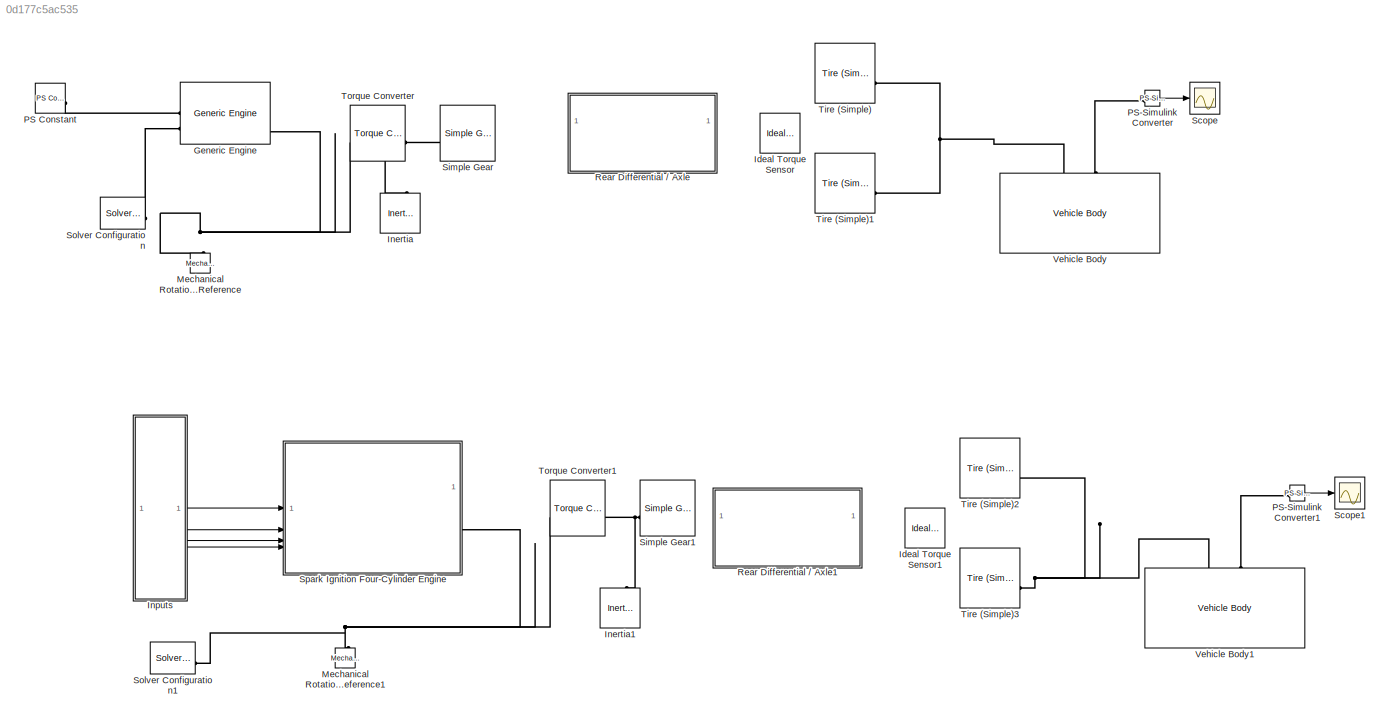
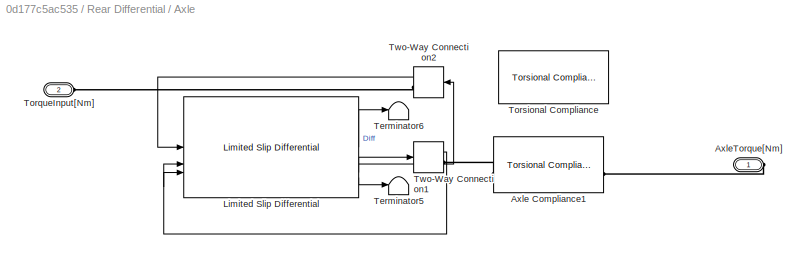
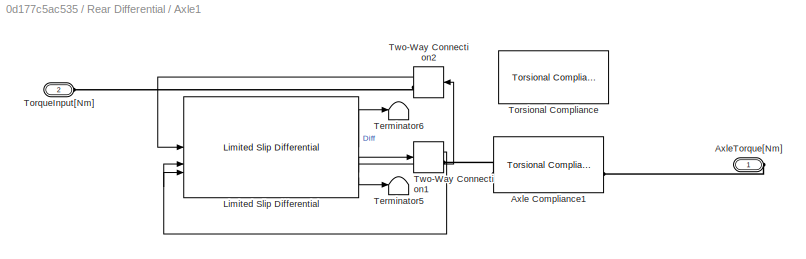
MODEL slx_0d177c5ac535
KIND model
CONFIG AbsTol = auto
CONFIG EnableMultiTasking = off
CONFIG FixedStep = auto
CONFIG MaxStep = auto
CONFIG MinStep = auto
CONFIG RelTol = 1e-3
CONFIG SampleTimeConstraint = Unconstrained
CONFIG SolverName = VariableStepAuto
CONFIG StartTime = 0.0
CONFIG StopTime = 10.0
BLOCK [Reference] Generic Engine  REF=sdl_lib/Engines & Motors/Generic Engine
  SourceBlock = sdl_lib/Engines & Motors/Generic Engine
  SourceType = Generic Engine
BLOCK [Reference] Ideal Torque Sensor  REF=fl_lib/Mechanical/Mechanical Sensors/Ideal Torque Sensor
  SourceBlock = fl_lib/Mechanical/Mechanical Sensors/Ideal Torque Sensor
  SourceType = Ideal Torque Sensor
BLOCK [Reference] Ideal Torque Sensor1  REF=fl_lib/Mechanical/Mechanical Sensors/Ideal Torque Sensor
  SourceBlock = fl_lib/Mechanical/Mechanical Sensors/Ideal Torque Sensor
  SourceType = Ideal Torque Sensor
BLOCK [Reference] Inertia  REF=fl_lib/Mechanical/Rotational Elements/Inertia
  NameLocation = right
  SourceBlock = fl_lib/Mechanical/Rotational Elements/Inertia
  SourceType = Inertia
BLOCK [Reference] Inertia1  REF=fl_lib/Mechanical/Rotational Elements/Inertia
  NameLocation = right
  SourceBlock = fl_lib/Mechanical/Rotational Elements/Inertia
  SourceType = Inertia
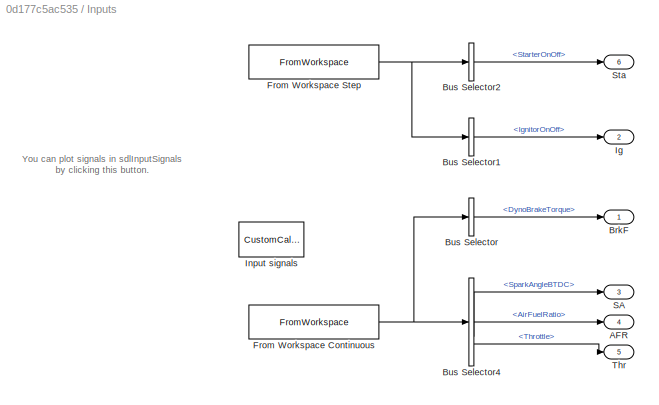
BLOCK [SubSystem] Inputs
BLOCK [Outport] Inputs/AFR
  NameLocation = right
  Port = 4
BLOCK [Outport] Inputs/BrkF
  NameLocation = right
BLOCK [BusSelector] Inputs/Bus Selector
  OutputSignals = DynoBrakeTorque
BLOCK [BusSelector] Inputs/Bus Selector1
  OutputSignals = IgnitorOnOff
BLOCK [BusSelector] Inputs/Bus Selector2
  OutputSignals = StarterOnOff
BLOCK [BusSelector] Inputs/Bus Selector4
  OutputSignals = SparkAngleBTDC,AirFuelRatio,Throttle
BLOCK [FromWorkspace] Inputs/From Workspace Continuous
  AttributesFormatString = Interpolate: %<Interpolate>\n%<OutDataTypeStr>
  OutDataTypeStr = Bus: sdlInputBus
  OutputAfterFinalValue = Holding final value
  VariableName = sdlInputSignals
BLOCK [FromWorkspace] Inputs/From Workspace Step
  AttributesFormatString = Interpolate: %<Interpolate>\n%<OutDataTypeStr>
  Interpolate = off
  OutDataTypeStr = Bus: sdlInputBus
  OutputAfterFinalValue = Holding final value
  VariableName = sdlInputSignals
BLOCK [Outport] Inputs/Ig
  NameLocation = right
  Port = 2
BLOCK [CustomCallbackButton] Inputs/Input signals
  Configuration = {"components":[{"name":"BackgroundImageComponent","settings":{"image":{"size":[0,0],"src":"default","srcOrientation":"Right"},"position":[0,0,1,1]}},{"name":"ButtonStateComponent","settings":{"buttonType":"momentary","clickFcn":"if not(evalin(\"base\", \"exist('sdlInputSignals','var') == 1\"))\n  sdlTmpData = CrankAngleResolvedEngineInput().EngineStartStopStart;\n  sdlInputSignals = sdlTmpData.Sig...<+2224ch>
  CustomBackgroundColor = {"color":[0.9568627451,0.9568627451,0.9568627451],"show":true}
  NameLocation = right
BLOCK [Outport] Inputs/SA
  NameLocation = right
  Port = 3
BLOCK [Outport] Inputs/Sta
  NameLocation = right
  Port = 6
BLOCK [Outport] Inputs/Thr
  NameLocation = right
  Port = 5
BLOCK [Reference] Mechanical Rotational Reference  REF=fl_lib/Mechanical/Rotational Elements/Mechanical
Rotational Reference
  NameLocation = right
  SourceBlock = fl_lib/Mechanical/Rotational Elements/Mechanical\nRotational Reference
  SourceType = Mechanical\nRotational Reference
BLOCK [Reference] Mechanical Rotational Reference1  REF=fl_lib/Mechanical/Rotational Elements/Mechanical
Rotational Reference
  NameLocation = right
  SourceBlock = fl_lib/Mechanical/Rotational Elements/Mechanical\nRotational Reference
  SourceType = Mechanical\nRotational Reference
BLOCK [Reference] PS Constant  REF=fl_lib/Physical Signals/Sources/PS Constant
  SourceBlock = fl_lib/Physical Signals/Sources/PS Constant
  SourceType = PS Constant
BLOCK [Reference] PS-Simulink Converter  REF=nesl_utility/PS-Simulink
Converter
  SourceBlock = nesl_utility/PS-Simulink\nConverter
  SourceType = PS-Simulink\nConverter
BLOCK [Reference] PS-Simulink Converter1  REF=nesl_utility/PS-Simulink
Converter
  SourceBlock = nesl_utility/PS-Simulink\nConverter
  SourceType = PS-Simulink\nConverter
BLOCK [SubSystem] Rear Differential // Axle
BLOCK [Reference] Rear Differential // Axle/Axle Compliance1  REF=autolibsharedcoupling/Torsional Compliance
  LibrarySourceBlock = autolibcoupling/Torsional Compliance
  SourceBlock = autolibsharedcoupling/Torsional Compliance
  SourceType = Torsional Compliance
BLOCK [PMIOPort] Rear Differential // Axle/AxleTorque[Nm]
  Side = Right
BLOCK [Reference] Rear Differential // Axle/Limited Slip Differential  REF=autolibshareddiff/Limited Slip Differential
  LibrarySourceBlock = autolibdiff/Limited Slip Differential
  SourceBlock = autolibshareddiff/Limited Slip Differential
  SourceType = Limited Slip Differential
BLOCK [Terminator] Rear Differential // Axle/Terminator5
BLOCK [Terminator] Rear Differential // Axle/Terminator6
BLOCK [PMIOPort] Rear Differential // Axle/TorqueInput[Nm]
  Port = 2
  Side = Left
BLOCK [Reference] Rear Differential // Axle/Torsional Compliance  REF=autolibsharedcoupling/Torsional Compliance
  LibrarySourceBlock = autolibcoupling/Torsional Compliance
  SourceBlock = autolibsharedcoupling/Torsional Compliance
  SourceType = Torsional Compliance
BLOCK [TwoWayConnection] Rear Differential // Axle/Two-Way Connection1
BLOCK [TwoWayConnection] Rear Differential // Axle/Two-Way Connection2
BLOCK [SubSystem] Rear Differential // Axle1
BLOCK [Reference] Rear Differential // Axle1/Axle Compliance1  REF=autolibsharedcoupling/Torsional Compliance
  LibrarySourceBlock = autolibcoupling/Torsional Compliance
  SourceBlock = autolibsharedcoupling/Torsional Compliance
  SourceType = Torsional Compliance
BLOCK [PMIOPort] Rear Differential // Axle1/AxleTorque[Nm]
  Side = Right
BLOCK [Reference] Rear Differential // Axle1/Limited Slip Differential  REF=autolibshareddiff/Limited Slip Differential
  LibrarySourceBlock = autolibdiff/Limited Slip Differential
  SourceBlock = autolibshareddiff/Limited Slip Differential
  SourceType = Limited Slip Differential
BLOCK [Terminator] Rear Differential // Axle1/Terminator5
BLOCK [Terminator] Rear Differential // Axle1/Terminator6
BLOCK [PMIOPort] Rear Differential // Axle1/TorqueInput[Nm]
  Port = 2
  Side = Left
BLOCK [Reference] Rear Differential // Axle1/Torsional Compliance  REF=autolibsharedcoupling/Torsional Compliance
  LibrarySourceBlock = autolibcoupling/Torsional Compliance
  SourceBlock = autolibsharedcoupling/Torsional Compliance
  SourceType = Torsional Compliance
BLOCK [TwoWayConnection] Rear Differential // Axle1/Two-Way Connection1
BLOCK [TwoWayConnection] Rear Differential // Axle1/Two-Way Connection2
BLOCK [Scope] Scope
  Floating = off
  NumInputPorts = 1
  ScopeSpecificationString = Simulink.scopes.TimeScopeBlockCfg('CurrentConfiguration', extmgr.ConfigurationSet(extmgr.Configuration('Core','General UI',true),extmgr.Configuration('Core','Source UI',true),extmgr.Configuration('Sources','WiredSimulink',true),extmgr.Configuration('Visuals','Time Domain',true,'SerializedDisplays',{struct('MinYLimReal','-11.73994','MaxYLimReal','105.65944','YLabelReal','','MinYLimMag','0.00000','M...<+1376ch>
BLOCK [Scope] Scope1
  Floating = off
  NumInputPorts = 1
  ScopeSpecificationString = Simulink.scopes.TimeScopeBlockCfg('CurrentConfiguration', extmgr.ConfigurationSet(extmgr.Configuration('Core','General UI',true),extmgr.Configuration('Core','Source UI',true),extmgr.Configuration('Sources','WiredSimulink',true,'DataLoggingVariableName','ScopeData1'),extmgr.Configuration('Visuals','Time Domain',true,'SerializedDisplays',{struct('MinYLimReal','-11.73994','MaxYLimReal','105.65944','Y...<+1415ch>
BLOCK [Reference] Simple Gear  REF=sdl_lib/Gears/Simple Gear
  SourceBlock = sdl_lib/Gears/Simple Gear
  SourceType = Simple Gear
BLOCK [Reference] Simple Gear1  REF=sdl_lib/Gears/Simple Gear
  SourceBlock = sdl_lib/Gears/Simple Gear
  SourceType = Simple Gear
BLOCK [Reference] Solver Configuration  REF=nesl_utility/Solver
Configuration
  SourceBlock = nesl_utility/Solver\nConfiguration
  SourceType = Solver\nConfiguration
BLOCK [Reference] Solver Configuration1  REF=nesl_utility/Solver
Configuration
  SourceBlock = nesl_utility/Solver\nConfiguration
  SourceType = Solver\nConfiguration
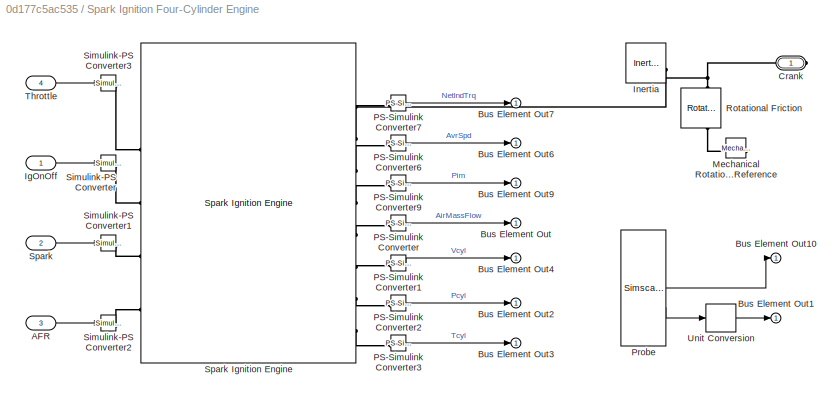
BLOCK [SubSystem] Spark Ignition Four-Cylinder Engine
BLOCK [Inport] Spark Ignition Four-Cylinder Engine/AFR
  Port = 3
BLOCK [Outport] Spark Ignition Four-Cylinder Engine/Bus Element Out
  AttributesFormatString = %<Unit>
BLOCK [Outport] Spark Ignition Four-Cylinder Engine/Bus Element Out1
  AttributesFormatString = %<Unit>
BLOCK [Outport] Spark Ignition Four-Cylinder Engine/Bus Element Out10
  AttributesFormatString = %<Unit>
BLOCK [Outport] Spark Ignition Four-Cylinder Engine/Bus Element Out2
  AttributesFormatString = %<Unit>
BLOCK [Outport] Spark Ignition Four-Cylinder Engine/Bus Element Out3
  AttributesFormatString = %<Unit>
BLOCK [Outport] Spark Ignition Four-Cylinder Engine/Bus Element Out4
  AttributesFormatString = %<Unit>
BLOCK [Outport] Spark Ignition Four-Cylinder Engine/Bus Element Out6
  AttributesFormatString = %<Unit>
BLOCK [Outport] Spark Ignition Four-Cylinder Engine/Bus Element Out7
  AttributesFormatString = %<Unit>
BLOCK [Outport] Spark Ignition Four-Cylinder Engine/Bus Element Out9
  AttributesFormatString = %<Unit>
BLOCK [PMIOPort] Spark Ignition Four-Cylinder Engine/Crank
  NameLocation = right
  Side = Right
BLOCK [Inport] Spark Ignition Four-Cylinder Engine/IgOnOff
BLOCK [Reference] Spark Ignition Four-Cylinder Engine/Inertia  REF=fl_lib/Mechanical/Rotational Elements/Inertia
  SourceBlock = fl_lib/Mechanical/Rotational Elements/Inertia
  SourceType = Inertia
BLOCK [Reference] Spark Ignition Four-Cylinder Engine/Mechanical Rotational Reference  REF=fl_lib/Mechanical/Rotational Elements/Mechanical
Rotational Reference
  SourceBlock = fl_lib/Mechanical/Rotational Elements/Mechanical\nRotational Reference
  SourceType = Mechanical\nRotational Reference
BLOCK [Reference] Spark Ignition Four-Cylinder Engine/PS-Simulink Converter  REF=nesl_utility/PS-Simulink
Converter
  AttributesFormatString = %<Unit>
  SourceBlock = nesl_utility/PS-Simulink\nConverter
  SourceType = PS-Simulink\nConverter
BLOCK [Reference] Spark Ignition Four-Cylinder Engine/PS-Simulink Converter1  REF=nesl_utility/PS-Simulink
Converter
  AttributesFormatString = %<Unit>
  SourceBlock = nesl_utility/PS-Simulink\nConverter
  SourceType = PS-Simulink\nConverter
BLOCK [Reference] Spark Ignition Four-Cylinder Engine/PS-Simulink Converter2  REF=nesl_utility/PS-Simulink
Converter
  AttributesFormatString = %<Unit>
  SourceBlock = nesl_utility/PS-Simulink\nConverter
  SourceType = PS-Simulink\nConverter
BLOCK [Reference] Spark Ignition Four-Cylinder Engine/PS-Simulink Converter3  REF=nesl_utility/PS-Simulink
Converter
  AttributesFormatString = %<Unit>
  SourceBlock = nesl_utility/PS-Simulink\nConverter
  SourceType = PS-Simulink\nConverter
BLOCK [Reference] Spark Ignition Four-Cylinder Engine/PS-Simulink Converter6  REF=nesl_utility/PS-Simulink
Converter
  AttributesFormatString = %<Unit>
  SourceBlock = nesl_utility/PS-Simulink\nConverter
  SourceType = PS-Simulink\nConverter
BLOCK [Reference] Spark Ignition Four-Cylinder Engine/PS-Simulink Converter7  REF=nesl_utility/PS-Simulink
Converter
  AttributesFormatString = %<Unit>
  SourceBlock = nesl_utility/PS-Simulink\nConverter
  SourceType = PS-Simulink\nConverter
BLOCK [Reference] Spark Ignition Four-Cylinder Engine/PS-Simulink Converter9  REF=nesl_utility/PS-Simulink
Converter
  AttributesFormatString = %<Unit>
  SourceBlock = nesl_utility/PS-Simulink\nConverter
  SourceType = PS-Simulink\nConverter
BLOCK [SimscapeProbe] Spark Ignition Four-Cylinder Engine/Probe
  BoundBlock = 241
  Variables = {t, w}
BLOCK [Reference] Spark Ignition Four-Cylinder Engine/Rotational Friction  REF=fl_lib/Mechanical/Rotational Elements/Rotational Friction
  NameLocation = right
  SourceBlock = fl_lib/Mechanical/Rotational Elements/Rotational Friction
  SourceType = Rotational Friction
BLOCK [Reference] Spark Ignition Four-Cylinder Engine/Simulink-PS Converter  REF=nesl_utility/Simulink-PS
Converter
  AttributesFormatString = %<Unit>
  SourceBlock = nesl_utility/Simulink-PS\nConverter
  SourceType = Simulink-PS\nConverter
BLOCK [Reference] Spark Ignition Four-Cylinder Engine/Simulink-PS Converter1  REF=nesl_utility/Simulink-PS
Converter
  AttributesFormatString = %<Unit>
  SourceBlock = nesl_utility/Simulink-PS\nConverter
  SourceType = Simulink-PS\nConverter
BLOCK [Reference] Spark Ignition Four-Cylinder Engine/Simulink-PS Converter2  REF=nesl_utility/Simulink-PS
Converter
  AttributesFormatString = %<Unit>
  SourceBlock = nesl_utility/Simulink-PS\nConverter
  SourceType = Simulink-PS\nConverter
BLOCK [Reference] Spark Ignition Four-Cylinder Engine/Simulink-PS Converter3  REF=nesl_utility/Simulink-PS
Converter
  AttributesFormatString = %<Unit>
  SourceBlock = nesl_utility/Simulink-PS\nConverter
  SourceType = Simulink-PS\nConverter
BLOCK [Inport] Spark Ignition Four-Cylinder Engine/Spark
  Port = 2
BLOCK [Reference] Spark Ignition Four-Cylinder Engine/Spark Ignition Engine  REF=sdl_lib/Engines & Motors/Spark Ignition
Engine
  SourceBlock = sdl_lib/Engines & Motors/Spark Ignition\nEngine
  SourceType = Spark Ignition\nEngine
BLOCK [Inport] Spark Ignition Four-Cylinder Engine/Throttle
  Port = 4
BLOCK [UnitConversion] Spark Ignition Four-Cylinder Engine/Unit Conversion
BLOCK [Reference] Tire (Simple)  REF=sdl_lib/Tires & Vehicles/Tire (Simple)
  SourceBlock = sdl_lib/Tires & Vehicles/Tire (Simple)
  SourceType = Tire (Simple)
BLOCK [Reference] Tire (Simple)1  REF=sdl_lib/Tires & Vehicles/Tire (Simple)
  SourceBlock = sdl_lib/Tires & Vehicles/Tire (Simple)
  SourceType = Tire (Simple)
BLOCK [Reference] Tire (Simple)2  REF=sdl_lib/Tires & Vehicles/Tire (Simple)
  SourceBlock = sdl_lib/Tires & Vehicles/Tire (Simple)
  SourceType = Tire (Simple)
BLOCK [Reference] Tire (Simple)3  REF=sdl_lib/Tires & Vehicles/Tire (Simple)
  SourceBlock = sdl_lib/Tires & Vehicles/Tire (Simple)
  SourceType = Tire (Simple)
BLOCK [Reference] Torque Converter  REF=sdl_lib/Couplings & Drives/Torque Converter
  SourceBlock = sdl_lib/Couplings & Drives/Torque Converter
  SourceType = Torque Converter
BLOCK [Reference] Torque Converter1  REF=sdl_lib/Couplings & Drives/Torque Converter
  SourceBlock = sdl_lib/Couplings & Drives/Torque Converter
  SourceType = Torque Converter
BLOCK [Reference] Vehicle Body  REF=sdl_lib/Tires & Vehicles/Vehicle Body
  NameLocation = right
  SourceBlock = sdl_lib/Tires & Vehicles/Vehicle Body
  SourceType = Vehicle Body
BLOCK [Reference] Vehicle Body1  REF=sdl_lib/Tires & Vehicles/Vehicle Body
  NameLocation = right
  SourceBlock = sdl_lib/Tires & Vehicles/Vehicle Body
  SourceType = Vehicle Body
ANNOTATION Inputs: You can plot signals in sdlInputSignals by clicking this button.
LINE Inputs/Bus Selector1:1 -> Inputs/Ig:1
LINE Inputs/Bus Selector2:1 -> Inputs/Sta:1
LINE Inputs/Bus Selector4:1 -> Inputs/SA:1
LINE Inputs/Bus Selector4:2 -> Inputs/AFR:1
LINE Inputs/Bus Selector4:3 -> Inputs/Thr:1
LINE Inputs/Bus Selector:1 -> Inputs/BrkF:1
NET Inputs/From Workspace Continuous:1 -> Inputs/Bus Selector4:1, Inputs/Bus Selector:1
NET Inputs/From Workspace Step:1 -> Inputs/Bus Selector1:1, Inputs/Bus Selector2:1
LINE Inputs:2 -> Spark Ignition Four-Cylinder Engine:1
LINE Inputs:3 -> Spark Ignition Four-Cylinder Engine:2
LINE Inputs:4 -> Spark Ignition Four-Cylinder Engine:3
LINE Inputs:5 -> Spark Ignition Four-Cylinder Engine:4
LINE PS-Simulink Converter1:1 -> Scope1:1
LINE PS-Simulink Converter:1 -> Scope:1
LINE Rear Differential // Axle/Limited Slip Differential:1 -> Rear Differential // Axle/Terminator6:1
LINE Rear Differential // Axle/Limited Slip Differential:2 -> Rear Differential // Axle/Two-Way Connection2:1
LINE Rear Differential // Axle/Limited Slip Differential:3 -> Rear Differential // Axle/Two-Way Connection1:1
LINE Rear Differential // Axle/Limited Slip Differential:4 -> Rear Differential // Axle/Terminator5:1
NET Rear Differential // Axle/Two-Way Connection1:1 -> Rear Differential // Axle/Limited Slip Differential:2, Rear Differential // Axle/Limited Slip Differential:3
LINE Rear Differential // Axle/Two-Way Connection2:1 -> Rear Differential // Axle/Limited Slip Differential:1
LINE Rear Differential // Axle1/Limited Slip Differential:1 -> Rear Differential // Axle1/Terminator6:1
LINE Rear Differential // Axle1/Limited Slip Differential:2 -> Rear Differential // Axle1/Two-Way Connection2:1
LINE Rear Differential // Axle1/Limited Slip Differential:3 -> Rear Differential // Axle1/Two-Way Connection1:1
LINE Rear Differential // Axle1/Limited Slip Differential:4 -> Rear Differential // Axle1/Terminator5:1
NET Rear Differential // Axle1/Two-Way Connection1:1 -> Rear Differential // Axle1/Limited Slip Differential:2, Rear Differential // Axle1/Limited Slip Differential:3
LINE Rear Differential // Axle1/Two-Way Connection2:1 -> Rear Differential // Axle1/Limited Slip Differential:1
LINE Spark Ignition Four-Cylinder Engine/AFR:1 -> Spark Ignition Four-Cylinder Engine/Simulink-PS Converter2:1
LINE Spark Ignition Four-Cylinder Engine/IgOnOff:1 -> Spark Ignition Four-Cylinder Engine/Simulink-PS Converter:1
LINE Spark Ignition Four-Cylinder Engine/PS-Simulink Converter1:1 -> Spark Ignition Four-Cylinder Engine/Bus Element Out4:1
LINE Spark Ignition Four-Cylinder Engine/PS-Simulink Converter2:1 -> Spark Ignition Four-Cylinder Engine/Bus Element Out2:1
LINE Spark Ignition Four-Cylinder Engine/PS-Simulink Converter3:1 -> Spark Ignition Four-Cylinder Engine/Bus Element Out3:1
LINE Spark Ignition Four-Cylinder Engine/PS-Simulink Converter6:1 -> Spark Ignition Four-Cylinder Engine/Bus Element Out6:1
LINE Spark Ignition Four-Cylinder Engine/PS-Simulink Converter7:1 -> Spark Ignition Four-Cylinder Engine/Bus Element Out7:1
LINE Spark Ignition Four-Cylinder Engine/PS-Simulink Converter9:1 -> Spark Ignition Four-Cylinder Engine/Bus Element Out9:1
LINE Spark Ignition Four-Cylinder Engine/PS-Simulink Converter:1 -> Spark Ignition Four-Cylinder Engine/Bus Element Out:1
LINE Spark Ignition Four-Cylinder Engine/Probe:1 -> Spark Ignition Four-Cylinder Engine/Bus Element Out10:1
LINE Spark Ignition Four-Cylinder Engine/Probe:2 -> Spark Ignition Four-Cylinder Engine/Unit Conversion:1
LINE Spark Ignition Four-Cylinder Engine/Spark:1 -> Spark Ignition Four-Cylinder Engine/Simulink-PS Converter1:1
LINE Spark Ignition Four-Cylinder Engine/Throttle:1 -> Spark Ignition Four-Cylinder Engine/Simulink-PS Converter3:1
LINE Spark Ignition Four-Cylinder Engine/Unit Conversion:1 -> Spark Ignition Four-Cylinder Engine/Bus Element Out1:1
PLINE Generic Engine:LConn1 -- PS Constant:RConn1
PNET net1: Generic Engine:LConn2 -- Generic Engine:RConn3 -- Mechanical Rotational Reference:LConn1 -- Solver Configuration:RConn1 -- Torque Converter:LConn1
PNET net2: Inertia1:LConn1 -- Simple Gear1:LConn1 -- Torque Converter1:RConn1
PNET net3: Inertia:LConn1 -- Simple Gear:LConn1 -- Torque Converter:RConn1
PNET net4: Mechanical Rotational Reference1:LConn1 -- Solver Configuration1:RConn1 -- Spark Ignition Four-Cylinder Engine:RConn1 -- Torque Converter1:LConn1
PLINE PS-Simulink Converter1:LConn1 -- Vehicle Body1:LConn2
PLINE PS-Simulink Converter:LConn1 -- Vehicle Body:LConn2
PLINE Rear Differential // Axle/Axle Compliance1:LConn1 -- Rear Differential // Axle/Two-Way Connection1:RConn1
PLINE Rear Differential // Axle/Axle Compliance1:RConn1 -- Rear Differential // Axle/AxleTorque[Nm]:RConn1
PLINE Rear Differential // Axle/TorqueInput[Nm]:RConn1 -- Rear Differential // Axle/Two-Way Connection2:RConn1
PLINE Rear Differential // Axle1/Axle Compliance1:LConn1 -- Rear Differential // Axle1/Two-Way Connection1:RConn1
PLINE Rear Differential // Axle1/Axle Compliance1:RConn1 -- Rear Differential // Axle1/AxleTorque[Nm]:RConn1
PLINE Rear Differential // Axle1/TorqueInput[Nm]:RConn1 -- Rear Differential // Axle1/Two-Way Connection2:RConn1
PNET net5: Spark Ignition Four-Cylinder Engine/Crank:RConn1 -- Spark Ignition Four-Cylinder Engine/Inertia:RConn1 -- Spark Ignition Four-Cylinder Engine/Rotational Friction:LConn1
PLINE Spark Ignition Four-Cylinder Engine/Inertia:LConn1 -- Spark Ignition Four-Cylinder Engine/Spark Ignition Engine:RConn1
PLINE Spark Ignition Four-Cylinder Engine/Mechanical Rotational Reference:LConn1 -- Spark Ignition Four-Cylinder Engine/Rotational Friction:RConn1
PLINE Spark Ignition Four-Cylinder Engine/PS-Simulink Converter1:LConn1 -- Spark Ignition Four-Cylinder Engine/Spark Ignition Engine:RConn6
PLINE Spark Ignition Four-Cylinder Engine/PS-Simulink Converter2:LConn1 -- Spark Ignition Four-Cylinder Engine/Spark Ignition Engine:RConn7
PLINE Spark Ignition Four-Cylinder Engine/PS-Simulink Converter3:LConn1 -- Spark Ignition Four-Cylinder Engine/Spark Ignition Engine:RConn8
PLINE Spark Ignition Four-Cylinder Engine/PS-Simulink Converter6:LConn1 -- Spark Ignition Four-Cylinder Engine/Spark Ignition Engine:RConn3
PLINE Spark Ignition Four-Cylinder Engine/PS-Simulink Converter7:LConn1 -- Spark Ignition Four-Cylinder Engine/Spark Ignition Engine:RConn2
PLINE Spark Ignition Four-Cylinder Engine/PS-Simulink Converter9:LConn1 -- Spark Ignition Four-Cylinder Engine/Spark Ignition Engine:RConn4
PLINE Spark Ignition Four-Cylinder Engine/PS-Simulink Converter:LConn1 -- Spark Ignition Four-Cylinder Engine/Spark Ignition Engine:RConn5
PLINE Spark Ignition Four-Cylinder Engine/Simulink-PS Converter1:RConn1 -- Spark Ignition Four-Cylinder Engine/Spark Ignition Engine:LConn3
PLINE Spark Ignition Four-Cylinder Engine/Simulink-PS Converter2:RConn1 -- Spark Ignition Four-Cylinder Engine/Spark Ignition Engine:LConn4
PLINE Spark Ignition Four-Cylinder Engine/Simulink-PS Converter3:RConn1 -- Spark Ignition Four-Cylinder Engine/Spark Ignition Engine:LConn1
PLINE Spark Ignition Four-Cylinder Engine/Simulink-PS Converter:RConn1 -- Spark Ignition Four-Cylinder Engine/Spark Ignition Engine:LConn2
PNET net6: Tire (Simple)1:RConn1 -- Tire (Simple):RConn1 -- Vehicle Body:LConn1
PNET net7: Tire (Simple)2:RConn1 -- Tire (Simple)3:RConn1 -- Vehicle Body1:LConn1
note: NET lines group one-source signal fan-out (src -> all destinations, sorted); 1:1 wires keep LINE; PNET lines group multi-terminal physical nets as a canonical sorted terminal list (undirected conserving connections); 2-terminal nets keep the pairwise PLINE form
